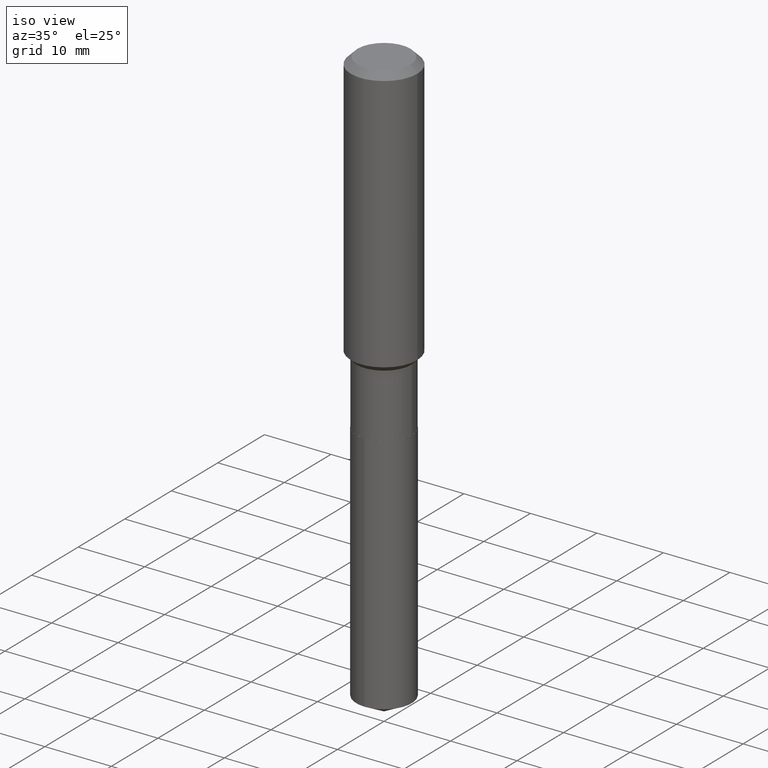
[diagram: clean part render]
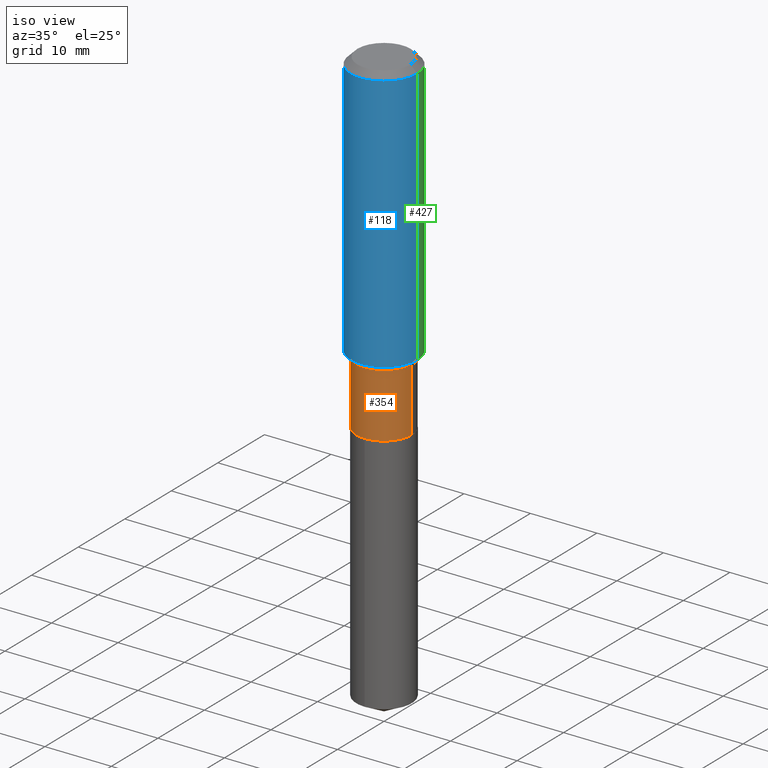
[diagram: same view with three faces highlighted in distinct colors, each labeled with its STEP entity id]
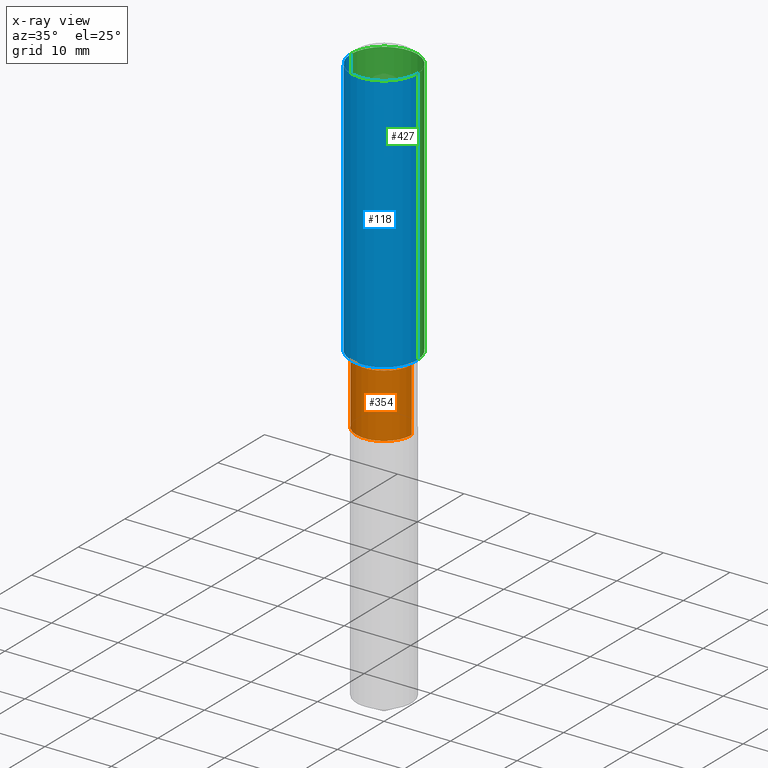
[diagram: x-ray of the same camera — body ghosted, the three highlighted faces saturated]
A machine part, iso view with three faces highlighted in distinct colors.
The next image is the same camera in x-ray (body ghosted, the three faces saturated) — at least one of them is partly hidden behind the body in this view.
Their STEP definitions:

[orange] entity #354 — the highlighted cylindrical surface (edge-blend (fillet) strip) has radius 4.1669 mm, axis along (-0, 0, 1).
#11 = CARTESIAN_POINT ( 'NONE',  ( -0.1640500000000000014, 1.165645358014444365E-15, -8.069513015563172164E-30 ) ) ;
#41 = VERTEX_POINT ( 'NONE', #266 ) ;
#77 = DIRECTION ( 'NONE',  ( -2.445468806185136597E-29, 3.491481338843145583E-15, 1.000000000000000000 ) ) ;
#78 = ORIENTED_EDGE ( 'NONE', *, *, #252, .F. ) ;
#92 = LINE ( 'NONE', #233, #275 ) ;
#95 = CARTESIAN_POINT ( 'NONE',  ( -0.1640500000000000291, -5.093533238129662036E-15, -1.981099999999999861 ) ) ;
#117 = CARTESIAN_POINT ( 'NONE',  ( -0.1640499999999999459, -5.093533238129662036E-15, -1.604299999999999837 ) ) ;
#119 = AXIS2_PLACEMENT_3D ( 'NONE', #159, #470, #273 ) ;
#159 = CARTESIAN_POINT ( 'NONE',  ( 3.923265605762814630E-29, -5.601383511906058021E-15, -1.604299999999999837 ) ) ;
#173 = VERTEX_POINT ( 'NONE', #117 ) ;
#185 = EDGE_CURVE ( 'NONE', #173, #41, #309, .T. ) ;
#192 = VERTEX_POINT ( 'NONE', #95 ) ;
#197 = EDGE_LOOP ( 'NONE', ( #78, #452, #285, #235 ) ) ;
#213 = EDGE_CURVE ( 'NONE', #192, #382, #396, .T. ) ;
#231 = DIRECTION ( 'NONE',  ( -2.445468806185136597E-29, 3.491481338843145583E-15, 1.000000000000000000 ) ) ;
#233 = CARTESIAN_POINT ( 'NONE',  ( 0.1640500000000000014, -1.145555027274432057E-15, 7.999368000693231542E-30 ) ) ;
#235 = ORIENTED_EDGE ( 'NONE', *, *, #185, .F. ) ;
#242 = DIRECTION ( 'NONE',  ( -2.445468806185136877E-29, 3.491481338843145188E-15, 1.000000000000000000 ) ) ;
#252 = EDGE_CURVE ( 'NONE', #192, #173, #265, .T. ) ;
#259 = VECTOR ( 'NONE', #418, 39.37007874015748143 ) ;
#263 = CARTESIAN_POINT ( 'NONE',  ( 4.844718251933373369E-29, -6.916973680382155175E-15, -1.981099999999999861 ) ) ;
#265 = LINE ( 'NONE', #11, #259 ) ;
#266 = CARTESIAN_POINT ( 'NONE',  ( 0.1640499999999999459, -6.746938539180489683E-15, -1.604299999999999837 ) ) ;
#273 = DIRECTION ( 'NONE',  ( 1.000000000000000000, -6.982962677686266711E-15, 0.000000000000000000 ) ) ;
#275 = VECTOR ( 'NONE', #242, 39.37007874015748143 ) ;
#285 = ORIENTED_EDGE ( 'NONE', *, *, #474, .T. ) ;
#309 = CIRCLE ( 'NONE', #119, 0.1640499999999999459 ) ;
#317 = AXIS2_PLACEMENT_3D ( 'NONE', #263, #231, #423 ) ;
#331 = AXIS2_PLACEMENT_3D ( 'NONE', #338, #77, #460 ) ;
#335 = CARTESIAN_POINT ( 'NONE',  ( 0.1640500000000000291, -8.062528707656587626E-15, -1.981099999999999861 ) ) ;
#338 = CARTESIAN_POINT ( 'NONE',  ( 0.000000000000000000, 0.000000000000000000, 0.000000000000000000 ) ) ;
#354 = ADVANCED_FACE ( 'NONE', ( #461 ), #466, .T. ) ;
#382 = VERTEX_POINT ( 'NONE', #335 ) ;
#396 = CIRCLE ( 'NONE', #317, 0.1640500000000000291 ) ;
#418 = DIRECTION ( 'NONE',  ( -2.445468806185136877E-29, 3.491481338843145188E-15, 1.000000000000000000 ) ) ;
#423 = DIRECTION ( 'NONE',  ( 1.000000000000000000, -6.982962677686269077E-15, 0.000000000000000000 ) ) ;
#452 = ORIENTED_EDGE ( 'NONE', *, *, #213, .T. ) ;
#460 = DIRECTION ( 'NONE',  ( 1.000000000000000000, -6.982962677686266711E-15, 4.876176775795935232E-29 ) ) ;
#461 = FACE_OUTER_BOUND ( 'NONE', #197, .T. ) ;
#466 = CYLINDRICAL_SURFACE ( 'NONE', #331, 0.1640500000000000014 ) ;
#470 = DIRECTION ( 'NONE',  ( -2.445468806185136597E-29, 3.491481338843145583E-15, 1.000000000000000000 ) ) ;
#474 = EDGE_CURVE ( 'NONE', #382, #41, #92, .T. ) ;

[blue] entity #118 — the highlighted cylindrical surface (partial cylindrical patch) has radius 5 mm, axis along (-0, 0, 1).
#2 = CIRCLE ( 'NONE', #350, 0.1968500000000001915 ) ;
#8 = ORIENTED_EDGE ( 'NONE', *, *, #165, .T. ) ;
#9 = CARTESIAN_POINT ( 'NONE',  ( 9.627810689950950651E-31, -1.374596203102555808E-16, -0.03937000000000027283 ) ) ;
#13 = CIRCLE ( 'NONE', #360, 0.1968500000000000527 ) ;
#14 = DIRECTION ( 'NONE',  ( -2.445468806185136877E-29, 3.491481338843145188E-15, 1.000000000000000000 ) ) ;
#32 = VERTEX_POINT ( 'NONE', #212 ) ;
#66 = VERTEX_POINT ( 'NONE', #229 ) ;
#76 = ORIENTED_EDGE ( 'NONE', *, *, #487, .F. ) ;
#109 = VERTEX_POINT ( 'NONE', #181 ) ;
#114 = CYLINDRICAL_SURFACE ( 'NONE', #362, 0.1968500000000001082 ) ;
#118 = ADVANCED_FACE ( 'NONE', ( #334 ), #114, .T. ) ;
#123 = LINE ( 'NONE', #163, #238 ) ;
#124 = DIRECTION ( 'NONE',  ( 1.000000000000000000, -6.982962677686266711E-15, 0.000000000000000000 ) ) ;
#125 = DIRECTION ( 'NONE',  ( 1.000000000000000000, -6.982962677686266711E-15, 0.000000000000000000 ) ) ;
#132 = VERTEX_POINT ( 'NONE', #336 ) ;
#163 = CARTESIAN_POINT ( 'NONE',  ( -0.1968500000000001082, 1.398703375343757985E-15, -9.682923725166787881E-30 ) ) ;
#165 = EDGE_CURVE ( 'NONE', #66, #109, #2, .T. ) ;
#168 = LINE ( 'NONE', #364, #447 ) ;
#181 = CARTESIAN_POINT ( 'NONE',  ( 0.1968500000000001915, -6.861459127094544262E-15, -1.571499999999999675 ) ) ;
#182 = DIRECTION ( 'NONE',  ( -2.445468806185136597E-29, 3.491481338843145583E-15, 1.000000000000000000 ) ) ;
#212 = CARTESIAN_POINT ( 'NONE',  ( 0.1968500000000000527, -1.512055823412797583E-15, -0.03937000000000027283 ) ) ;
#229 = CARTESIAN_POINT ( 'NONE',  ( -0.1968500000000001915, -4.088159548648243288E-15, -1.571499999999999675 ) ) ;
#238 = VECTOR ( 'NONE', #394, 39.37007874015748143 ) ;
#254 = ORIENTED_EDGE ( 'NONE', *, *, #381, .T. ) ;
#270 = DIRECTION ( 'NONE',  ( -2.445468806185136597E-29, 3.491481338843145583E-15, 1.000000000000000000 ) ) ;
#274 = EDGE_LOOP ( 'NONE', ( #400, #8, #254, #76 ) ) ;
#312 = DIRECTION ( 'NONE',  ( -2.445468806185136597E-29, 3.491481338843145583E-15, 1.000000000000000000 ) ) ;
#334 = FACE_OUTER_BOUND ( 'NONE', #274, .T. ) ;
#336 = CARTESIAN_POINT ( 'NONE',  ( -0.1968500000000000527, -1.413457896807370738E-15, -0.03937000000000027283 ) ) ;
#350 = AXIS2_PLACEMENT_3D ( 'NONE', #459, #312, #125 ) ;
#360 = AXIS2_PLACEMENT_3D ( 'NONE', #9, #270, #124 ) ;
#362 = AXIS2_PLACEMENT_3D ( 'NONE', #489, #182, #449 ) ;
#364 = CARTESIAN_POINT ( 'NONE',  ( 0.1968500000000001082, -1.374596203102542397E-15, 9.598753983154305062E-30 ) ) ;
#381 = EDGE_CURVE ( 'NONE', #109, #32, #168, .T. ) ;
#394 = DIRECTION ( 'NONE',  ( -2.445468806185136877E-29, 3.491481338843145188E-15, 1.000000000000000000 ) ) ;
#399 = EDGE_CURVE ( 'NONE', #66, #132, #123, .T. ) ;
#400 = ORIENTED_EDGE ( 'NONE', *, *, #399, .F. ) ;
#447 = VECTOR ( 'NONE', #14, 39.37007874015748143 ) ;
#449 = DIRECTION ( 'NONE',  ( 1.000000000000000000, -6.982962677686266711E-15, 4.876176775795935793E-29 ) ) ;
#459 = CARTESIAN_POINT ( 'NONE',  ( 3.843054228919941314E-29, -5.486862923992002653E-15, -1.571499999999999675 ) ) ;
#487 = EDGE_CURVE ( 'NONE', #132, #32, #13, .T. ) ;
#489 = CARTESIAN_POINT ( 'NONE',  ( 0.000000000000000000, 0.000000000000000000, 0.000000000000000000 ) ) ;

[green] entity #427 — the highlighted cylindrical surface (partial cylindrical patch) has radius 5 mm, axis along (-0, 0, 1).
#3 = ORIENTED_EDGE ( 'NONE', *, *, #381, .F. ) ;
#14 = DIRECTION ( 'NONE',  ( -2.445468806185136877E-29, 3.491481338843145188E-15, 1.000000000000000000 ) ) ;
#32 = VERTEX_POINT ( 'NONE', #212 ) ;
#51 = DIRECTION ( 'NONE',  ( 1.000000000000000000, -6.982962677686266711E-15, 0.000000000000000000 ) ) ;
#63 = CIRCLE ( 'NONE', #101, 0.1968500000000001915 ) ;
#66 = VERTEX_POINT ( 'NONE', #229 ) ;
#82 = FACE_OUTER_BOUND ( 'NONE', #444, .T. ) ;
#96 = DIRECTION ( 'NONE',  ( -2.445468806185136597E-29, 3.491481338843145583E-15, 1.000000000000000000 ) ) ;
#97 = CARTESIAN_POINT ( 'NONE',  ( 0.000000000000000000, 0.000000000000000000, 0.000000000000000000 ) ) ;
#101 = AXIS2_PLACEMENT_3D ( 'NONE', #313, #412, #145 ) ;
#109 = VERTEX_POINT ( 'NONE', #181 ) ;
#123 = LINE ( 'NONE', #163, #238 ) ;
#128 = DIRECTION ( 'NONE',  ( 1.000000000000000000, -6.982962677686266711E-15, 4.876176775795935793E-29 ) ) ;
#132 = VERTEX_POINT ( 'NONE', #336 ) ;
#145 = DIRECTION ( 'NONE',  ( 1.000000000000000000, -6.982962677686266711E-15, 0.000000000000000000 ) ) ;
#163 = CARTESIAN_POINT ( 'NONE',  ( -0.1968500000000001082, 1.398703375343757985E-15, -9.682923725166787881E-30 ) ) ;
#168 = LINE ( 'NONE', #364, #447 ) ;
#170 = ORIENTED_EDGE ( 'NONE', *, *, #399, .T. ) ;
#181 = CARTESIAN_POINT ( 'NONE',  ( 0.1968500000000001915, -6.861459127094544262E-15, -1.571499999999999675 ) ) ;
#196 = DIRECTION ( 'NONE',  ( -2.445468806185136597E-29, 3.491481338843145583E-15, 1.000000000000000000 ) ) ;
#212 = CARTESIAN_POINT ( 'NONE',  ( 0.1968500000000000527, -1.512055823412797583E-15, -0.03937000000000027283 ) ) ;
#228 = CIRCLE ( 'NONE', #454, 0.1968500000000000527 ) ;
#229 = CARTESIAN_POINT ( 'NONE',  ( -0.1968500000000001915, -4.088159548648243288E-15, -1.571499999999999675 ) ) ;
#234 = EDGE_CURVE ( 'NONE', #109, #66, #63, .T. ) ;
#238 = VECTOR ( 'NONE', #394, 39.37007874015748143 ) ;
#313 = CARTESIAN_POINT ( 'NONE',  ( 3.843054228919941314E-29, -5.486862923992002653E-15, -1.571499999999999675 ) ) ;
#336 = CARTESIAN_POINT ( 'NONE',  ( -0.1968500000000000527, -1.413457896807370738E-15, -0.03937000000000027283 ) ) ;
#364 = CARTESIAN_POINT ( 'NONE',  ( 0.1968500000000001082, -1.374596203102542397E-15, 9.598753983154305062E-30 ) ) ;
#381 = EDGE_CURVE ( 'NONE', #109, #32, #168, .T. ) ;
#388 = EDGE_CURVE ( 'NONE', #32, #132, #228, .T. ) ;
#390 = AXIS2_PLACEMENT_3D ( 'NONE', #97, #96, #128 ) ;
#394 = DIRECTION ( 'NONE',  ( -2.445468806185136877E-29, 3.491481338843145188E-15, 1.000000000000000000 ) ) ;
#399 = EDGE_CURVE ( 'NONE', #66, #132, #123, .T. ) ;
#412 = DIRECTION ( 'NONE',  ( -2.445468806185136597E-29, 3.491481338843145583E-15, 1.000000000000000000 ) ) ;
#420 = ORIENTED_EDGE ( 'NONE', *, *, #388, .F. ) ;
#427 = ADVANCED_FACE ( 'NONE', ( #82 ), #468, .T. ) ;
#434 = CARTESIAN_POINT ( 'NONE',  ( 9.627810689950950651E-31, -1.374596203102555808E-16, -0.03937000000000027283 ) ) ;
#444 = EDGE_LOOP ( 'NONE', ( #451, #170, #420, #3 ) ) ;
#447 = VECTOR ( 'NONE', #14, 39.37007874015748143 ) ;
#451 = ORIENTED_EDGE ( 'NONE', *, *, #234, .T. ) ;
#454 = AXIS2_PLACEMENT_3D ( 'NONE', #434, #196, #51 ) ;
#468 = CYLINDRICAL_SURFACE ( 'NONE', #390, 0.1968500000000001082 ) ;